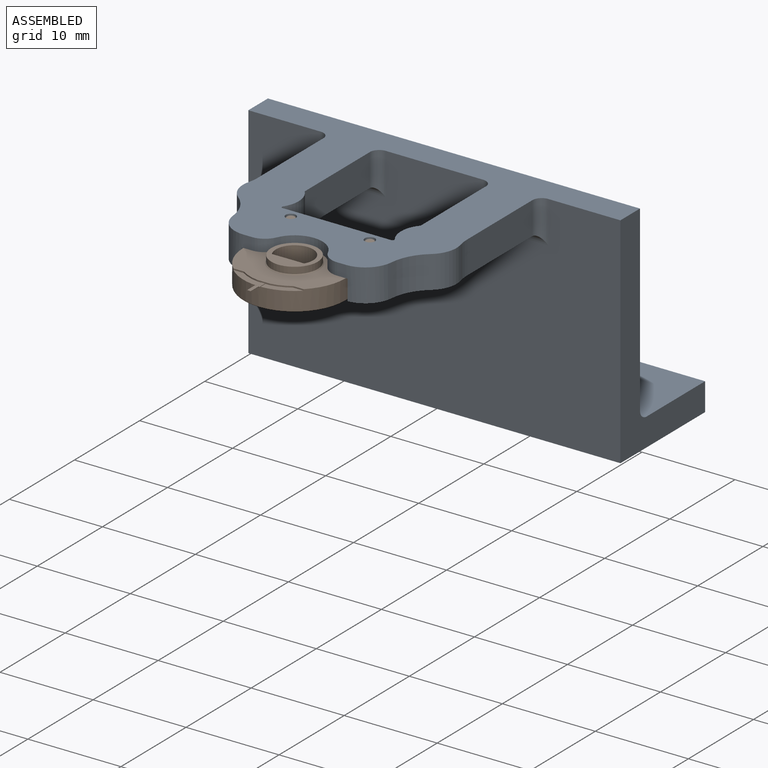
[diagram: assembled view]
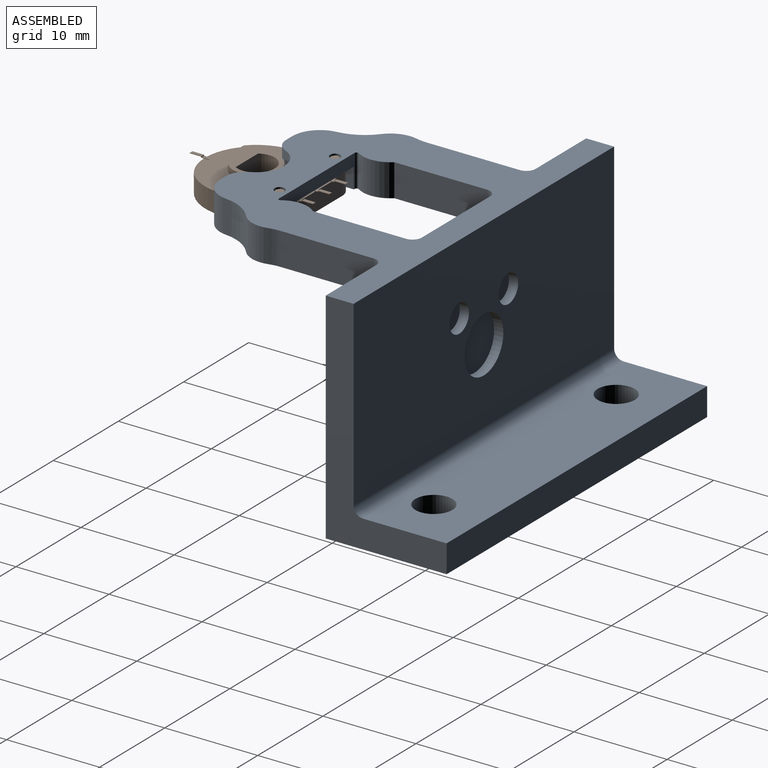
[diagram: assembled view, second angle]
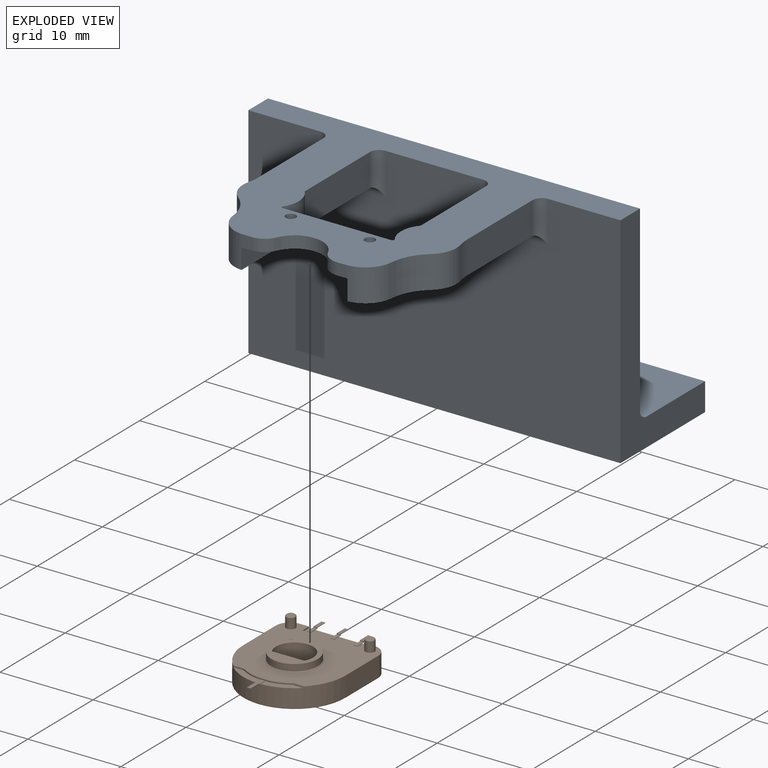
[diagram: exploded view]
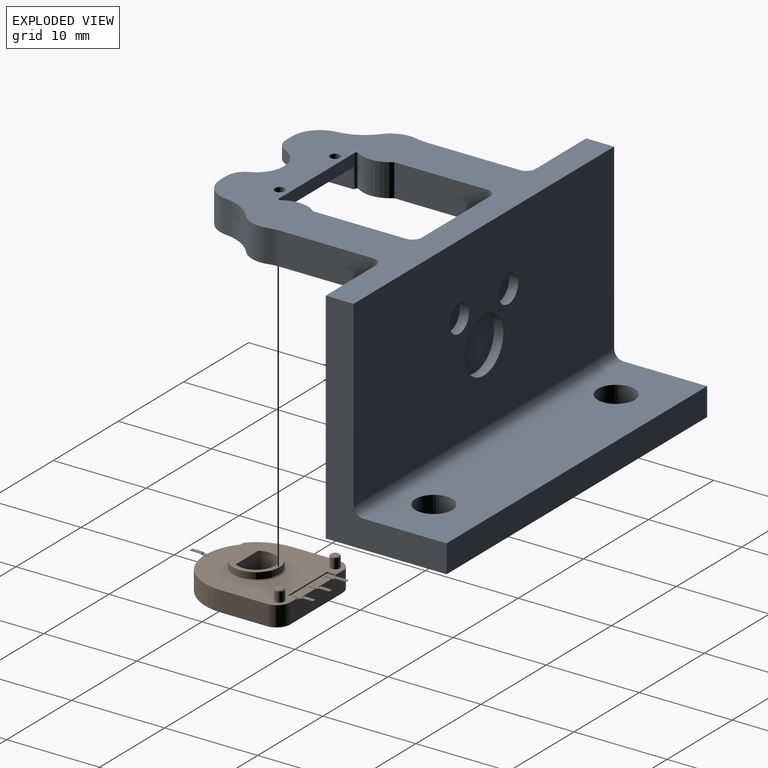
[diagram: exploded view, second angle]
ASSEMBLY  parts=2 mates=3
PART A: 52 faces, bbox 34.5x40x23.6 mm
  f0: plane 40x19.6mm, normal (1,0,0), area 741.6mm2, adj f1,f2,f30,f37,f46,f48,f50
  f1: plane 40x24.47mm, normal (0,0,1), area 370.9mm2, adj f0,f2,f4,f5,f6,f11,f12,f13
  f2: plane 23.6x13mm, normal (0,-1,0), area 101mm2, adj f0,f1,f27,f31,f35,f36,f37
  f3: plane 20.47x6mm, normal (0,0,-1), area 91.4mm2, adj f4,f8,f15,f17,f18,f20,f22,f28
  f4: cylinder r=3mm len=3.66mm, axis (0,0,1), area 13.8mm2, adj f1,f3,f18,f28
  f5: cylinder r=3mm len=3.5mm, axis (0,0,1), area 12mm2, adj f1,f10,f21,f34
  f6: plane 1.3x0.94mm, normal (-1,0,0), area 1.2mm2, adj f1,f7,f23,f25
  f7: plane 11.4x6.5mm, normal (0,0,-1), area 57.2mm2, adj f6,f8,f9,f11,f12,f13,f14,f17
  f8: plane 6.49x2.2mm, normal (0,-1,0), area 14.3mm2, adj f3,f7,f17,f22
  f9: plane 6.49x2.2mm, normal (0,1,0), area 14.3mm2, adj f7,f10,f17,f23
  f10: plane 20.47x6mm, normal (0,0,-1), area 91.4mm2, adj f5,f9,f16,f17,f19,f21,f23,f26
  f11: cylinder r=0.55mm len=1.3mm, axis (0,0,1), area 4.5mm2, adj f1,f7
  f12: cylinder r=0.55mm len=1.3mm, axis (0,0,1), area 4.5mm2, adj f1,f7
  f13: cylinder r=3mm len=5.5mm, axis (0,0,1), area 9mm2, adj f1,f7,f24,f25
  f14: plane 1.3x0.94mm, normal (-1,0,0), area 1.2mm2, adj f1,f7,f22,f24
  f15: cylinder r=3mm len=3.5mm, axis (0,0,1), area 12mm2, adj f1,f3,f20,f33
  f16: cylinder r=3mm len=3.66mm, axis (0,0,1), area 13.8mm2, adj f1,f10,f19,f26
  f17: plane 11.66x3.5mm, normal (1,0,0), area 15.7mm2, adj f1,f3,f7,f8,f9,f10,f18,f19
  f18: cylinder r=0.2mm len=3.5mm, axis (0,0,1), area 1.5mm2, adj f1,f3,f4,f17
  f19: cylinder r=0.2mm len=3.5mm, axis (0,0,1), area 1.5mm2, adj f1,f10,f16,f17
  f20: cylinder r=5mm len=3.5mm, axis (0,0,1), area 14mm2, adj f1,f3,f15,f22
  f21: cylinder r=5mm len=3.5mm, axis (0,0,1), area 14mm2, adj f1,f5,f10,f23
  f22: cylinder r=3mm len=3.5mm, axis (0,0,1), area 15.1mm2, adj f1,f3,f7,f8,f14,f20
  f23: cylinder r=3mm len=3.5mm, axis (0,0,1), area 15.1mm2, adj f1,f6,f7,f9,f10,f21
  f24: cylinder r=2mm len=1.83mm, axis (0,0,1), area 3mm2, adj f1,f7,f13,f14
  f25: cylinder r=2mm len=1.83mm, axis (0,0,1), area 3mm2, adj f1,f6,f7,f13
  f26: plane 10x3.5mm, normal (0,1,0), area 35mm2, adj f1,f10,f16,f41
  f27: plane 40x23.6mm, normal (-1,0,0), area 881mm2, adj f1,f2,f30,f35,f38,f39,f40,f41
  f28: plane 10x3.5mm, normal (0,-1,0), area 35mm2, adj f1,f3,f4,f39
  f29: plane 10x3.5mm, normal (0,1,0), area 35mm2, adj f1,f3,f33,f38
  f30: plane 23.6x13mm, normal (0,1,0), area 101mm2, adj f0,f1,f27,f31,f35,f36,f37
  f31: plane 40x3mm, normal (1,0,0), area 120mm2, adj f2,f30,f35,f36
  f32: plane 10x3.5mm, normal (0,-1,0), area 35mm2, adj f1,f10,f34,f42
  f33: cylinder r=5mm len=3.5mm, axis (0,0,-1), area 4.4mm2, adj f1,f3,f15,f29
  f34: cylinder r=5mm len=3.5mm, axis (0,0,1), area 4.4mm2, adj f1,f5,f10,f32
  f35: plane 40x13mm, normal (0,0,-1), area 494.9mm2, adj f2,f27,f30,f31,f44,f45
  f36: plane 40x9mm, normal (0,0,1), area 334.9mm2, adj f2,f30,f31,f37,f44,f45
  f37: cylinder r=1mm len=40mm, axis (0,1,0), area 62.8mm2, adj f0,f2,f30,f36
  f38: cylinder r=1mm len=4.5mm, axis (0,0,-1), area 6.1mm2, adj f1,f27,f29,f40
  f39: cylinder r=1mm len=4.5mm, axis (0,0,1), area 6.1mm2, adj f1,f27,f28,f40
  f40: cylinder r=1mm len=7mm, axis (0,1,0), area 9mm2, adj f3,f27,f38,f39
  f41: cylinder r=1mm len=4.5mm, axis (0,0,-1), area 6.1mm2, adj f1,f26,f27,f43
  f42: cylinder r=1mm len=4.5mm, axis (0,0,1), area 6.1mm2, adj f1,f27,f32,f43
  f43: cylinder r=1mm len=7mm, axis (0,1,0), area 9mm2, adj f10,f27,f41,f42
  f44: cylinder r=2mm len=4mm, axis (0,0,1), area 37.7mm2, adj f35,f36
  f45: cylinder r=2mm len=4mm, axis (0,0,1), area 37.7mm2, adj f35,f36
  f46: cylinder r=3mm len=6mm, axis (1,0,0), area 18.8mm2, adj f0,f47
  f47: plane 6x6mm, normal (1,0,0), area 28.3mm2, adj f46
  f48: cylinder r=1.5mm len=3mm, axis (1,0,0), area 9.4mm2, adj f0,f49
  f49: plane 3x3mm, normal (1,0,0), area 7.1mm2, adj f48
  f50: cylinder r=1.5mm len=3mm, axis (1,0,0), area 9.4mm2, adj f0,f51
  f51: plane 3x3mm, normal (1,0,0), area 7.1mm2, adj f50
PART B: 143 faces, bbox 11.9x15x3.4 mm
  f0: plane 7.55x1.5mm, normal (0,0,-1), area 4.7mm2, adj f2,f28,f29,f30,f31,f32,f33,f34
  f1: plane 11.8x10.8mm, normal (0,0,1), area 91.4mm2, adj f9,f11,f12,f13,f14,f15,f16,f41
  f2: cylinder r=5.5mm len=11mm, axis (0,0,-1), area 35mm2, adj f0,f3,f4,f8,f15,f28,f34,f101
  f3: plane 11.25x11mm, normal (0,0,-1), area 84.3mm2, adj f2,f4,f5,f6,f7,f8,f21,f22
  f4: plane 5x2.1mm, normal (-1,0,0), area 10.5mm2, adj f2,f3,f5,f13
  f5: cylinder r=1.5mm len=2.1mm, axis (0,0,-1), area 4.9mm2, adj f3,f4,f6,f11
  f6: plane 8x2.1mm, normal (0,-1,0), area 15.9mm2, adj f3,f5,f7,f12,f35,f39,f40,f87
  f7: cylinder r=1.5mm len=2.1mm, axis (0,0,-1), area 4.9mm2, adj f3,f6,f8,f14
  f8: plane 5x2.1mm, normal (1,0,0), area 10.5mm2, adj f2,f3,f7,f16
  f9: cylinder r=2.25mm len=4.5mm, axis (0,0,1), area 1.4mm2, adj f1,f10
  f10: plane 4.5x4.5mm, normal (0,0,1), area 5.8mm2, adj f9,f19,f20
  f11: torus R=1.4mm, axis (0,0,1), area 0.4mm2, adj f1,f5,f12,f13
  f12: cylinder r=0.1mm len=8mm, axis (-1,0,0), area 1.3mm2, adj f1,f6,f11,f14
  f13: cylinder r=0.1mm len=5mm, axis (0,1,0), area 0.8mm2, adj f1,f4,f11,f15
  f14: torus R=1.4mm, axis (0,0,1), area 0.4mm2, adj f1,f7,f12,f16
  f15: torus R=5.4mm, axis (0,0,1), area 2.7mm2, adj f1,f2,f13,f16
  f16: cylinder r=0.1mm len=5mm, axis (0,-1,0), area 0.8mm2, adj f1,f8,f14,f15
  f17: cylinder r=2.5mm len=5mm, axis (0,0,1), area 11mm2, adj f18,f21
  f18: plane 5x5mm, normal (0,0,-1), area 9.5mm2, adj f17,f19,f20
  f19: cylinder r=2mm len=4mm, axis (0,0,1), area 24.3mm2, adj f10,f18,f20
  f20: plane 3.46x2.9mm, normal (0,-1,0), area 10mm2, adj f10,f18,f19
  f21: cone r=2.5mm half-angle=45deg, axis (0,0,1), area 2.3mm2, adj f3,f17
  f22: cylinder r=0.5mm len=1.1mm, axis (0,0,1), area 3.5mm2, adj f3,f27
  f23: plane 0.8x0.8mm, normal (0,0,-1), area 0.5mm2, adj f27
  f24: cylinder r=0.5mm len=1.1mm, axis (0,0,1), area 3.5mm2, adj f3,f26
  f25: plane 0.8x0.8mm, normal (0,0,-1), area 0.5mm2, adj f26
  f26: cone r=0.5mm half-angle=45deg, axis (0,0,1), area 0.4mm2, adj f24,f25
  f27: cone r=0.4mm half-angle=45deg, axis (0,0,1), area 0.4mm2, adj f22,f23
  f28: plane 1.09x0.15mm, normal (0,1,0), area 0.2mm2, adj f0,f2,f3,f29
  f29: cylinder r=0.1mm len=0.15mm, axis (0,0,-1), area 0mm2, adj f0,f3,f28,f30
  f30: cylinder r=4.8mm len=1.94mm, axis (0,0,-1), area 0.3mm2, adj f0,f3,f29,f31
  f31: plane 1.38x0.15mm, normal (0,1,0), area 0.2mm2, adj f0,f3,f30,f32
  f32: cylinder r=4.8mm len=1.94mm, axis (0,0,-1), area 0.3mm2, adj f0,f3,f31,f33
  f33: cylinder r=0.1mm len=0.15mm, axis (0,0,-1), area 0mm2, adj f0,f3,f32,f34
  f34: plane 1.09x0.15mm, normal (0,1,0), area 0.2mm2, adj f0,f2,f3,f33
  f35: plane 0.9x0.15mm, normal (1,0,0), area 0.1mm2, adj f3,f6,f36,f40
  f36: cylinder r=0.1mm len=0.15mm, axis (0,0,-1), area 0mm2, adj f3,f35,f37,f40
  f37: plane 5.8x0.15mm, normal (0,-1,0), area 0.9mm2, adj f3,f36,f38,f40
  f38: cylinder r=0.1mm len=0.15mm, axis (0,0,-1), area 0mm2, adj f3,f37,f39,f40
  f39: plane 0.9x0.15mm, normal (-1,0,0), area 0.1mm2, adj f3,f6,f38,f40
  f40: plane 6x1mm, normal (0,0,-1), area 5.2mm2, adj f6,f35,f36,f37,f38,f39,f88,f99
  f41: cylinder r=0.1mm len=0.2mm, axis (0,0,1), area 0mm2, adj f1,f42,f48,f49
  f42: plane 1.3x0.2mm, normal (0,1,0), area 0.3mm2, adj f1,f41,f43,f49
  f43: cylinder r=0.1mm len=0.2mm, axis (0,0,1), area 0mm2, adj f1,f42,f44,f49
  f44: plane 0.4x0.2mm, normal (-1,0,0), area 0.1mm2, adj f1,f43,f45,f49
  f45: cylinder r=0.1mm len=0.2mm, axis (0,0,1), area 0mm2, adj f1,f44,f46,f49
  f46: plane 1.3x0.2mm, normal (0,-1,0), area 0.3mm2, adj f1,f45,f47,f49
  f47: cylinder r=0.1mm len=0.2mm, axis (0,0,1), area 0mm2, adj f1,f46,f48,f49
  f48: plane 0.4x0.2mm, normal (1,0,0), area 0.1mm2, adj f1,f41,f47,f49
  f49: plane 1.5x0.6mm, normal (0,0,1), area 0.9mm2, adj f41,f42,f43,f44,f45,f46,f47,f48
  f50: cylinder r=0.3mm len=0.6mm, axis (0,0,1), area 0.2mm2, adj f1,f51,f53,f54
  f51: cylinder r=4.7mm len=1.53mm, axis (0,0,1), area 0.3mm2, adj f1,f50,f52,f54
  f52: cylinder r=0.3mm len=0.56mm, axis (0,0,1), area 0.2mm2, adj f1,f51,f53,f54
  f53: cylinder r=5.3mm len=1.73mm, axis (0,0,1), area 0.4mm2, adj f1,f50,f52,f54
  f54: plane 2.23x1.19mm, normal (0,0,1), area 1.3mm2, adj f50,f51,f52,f53
  f55: cylinder r=0.1mm len=0.2mm, axis (0,0,1), area 0mm2, adj f1,f56,f62,f63
  f56: plane 0.4x0.2mm, normal (0,1,0), area 0.1mm2, adj f1,f55,f57,f63
  f57: cylinder r=0.1mm len=0.2mm, axis (0,0,1), area 0mm2, adj f1,f56,f58,f63
  f58: plane 1.8x0.2mm, normal (-1,0,0), area 0.4mm2, adj f1,f57,f59,f63
  f59: cylinder r=0.1mm len=0.2mm, axis (0,0,1), area 0mm2, adj f1,f58,f60,f63
  f60: plane 0.4x0.2mm, normal (0,-1,0), area 0.1mm2, adj f1,f59,f61,f63
  f61: cylinder r=0.1mm len=0.2mm, axis (0,0,1), area 0mm2, adj f1,f60,f62,f63
  f62: plane 1.8x0.2mm, normal (1,0,0), area 0.4mm2, adj f1,f55,f61,f63
  f63: plane 2x0.6mm, normal (0,0,1), area 1.2mm2, adj f55,f56,f57,f58,f59,f60,f61,f62
  f64: cylinder r=0.1mm len=0.2mm, axis (0,0,1), area 0mm2, adj f1,f65,f71,f72
  f65: plane 1.3x0.2mm, normal (0,-1,0), area 0.3mm2, adj f1,f64,f66,f72
  f66: cylinder r=0.1mm len=0.2mm, axis (0,0,1), area 0mm2, adj f1,f65,f67,f72
  f67: plane 0.4x0.2mm, normal (1,0,0), area 0.1mm2, adj f1,f66,f68,f72
  f68: cylinder r=0.1mm len=0.2mm, axis (0,0,1), area 0mm2, adj f1,f67,f69,f72
  f69: plane 1.3x0.2mm, normal (0,1,0), area 0.3mm2, adj f1,f68,f70,f72
  f70: cylinder r=0.1mm len=0.2mm, axis (0,0,1), area 0mm2, adj f1,f69,f71,f72
  f71: plane 0.4x0.2mm, normal (-1,0,0), area 0.1mm2, adj f1,f64,f70,f72
  f72: plane 1.5x0.6mm, normal (0,0,1), area 0.9mm2, adj f64,f65,f66,f67,f68,f69,f70,f71
  f73: cylinder r=0.1mm len=0.2mm, axis (0,0,1), area 0mm2, adj f1,f74,f80,f81
  f74: plane 1.8x0.2mm, normal (1,0,0), area 0.4mm2, adj f1,f73,f75,f81
  f75: cylinder r=0.1mm len=0.2mm, axis (0,0,1), area 0mm2, adj f1,f74,f76,f81
  f76: plane 0.4x0.2mm, normal (0,1,0), area 0.1mm2, adj f1,f75,f77,f81
  f77: cylinder r=0.1mm len=0.2mm, axis (0,0,1), area 0mm2, adj f1,f76,f78,f81
  f78: plane 1.8x0.2mm, normal (-1,0,0), area 0.4mm2, adj f1,f77,f79,f81
  f79: cylinder r=0.1mm len=0.2mm, axis (0,0,1), area 0mm2, adj f1,f78,f80,f81
  f80: plane 0.4x0.2mm, normal (0,-1,0), area 0.1mm2, adj f1,f73,f79,f81
  f81: plane 2x0.6mm, normal (0,0,1), area 1.2mm2, adj f73,f74,f75,f76,f77,f78,f79,f80
  f82: cylinder r=0.3mm len=0.6mm, axis (0,0,1), area 0.2mm2, adj f1,f83,f85,f86
  f83: cylinder r=5.3mm len=1.73mm, axis (0,0,1), area 0.4mm2, adj f1,f82,f84,f86
  f84: cylinder r=0.3mm len=0.56mm, axis (0,0,1), area 0.2mm2, adj f1,f83,f85,f86
  f85: cylinder r=4.7mm len=1.53mm, axis (0,0,1), area 0.3mm2, adj f1,f82,f84,f86
  f86: plane 2.23x1.19mm, normal (0,0,1), area 1.3mm2, adj f82,f83,f84,f85
  f87: plane 0.4x0.28mm, normal (0,0,1), area 0.1mm2, adj f6,f89,f99,f100
  f88: plane 0.4x0.05mm, normal (0,1,0), area 0mm2, adj f40,f98,f99,f100
  f89: cylinder r=0.02mm len=0.4mm, axis (-1,0,0), area 0mm2, adj f87,f90,f99,f100
  f90: plane 0.4x0.06mm, normal (0,-1,0), area 0mm2, adj f89,f91,f99,f100
  f91: cylinder r=0.02mm len=0.4mm, axis (-1,0,0), area 0mm2, adj f90,f92,f99,f100
  f92: plane 1.18x0.4mm, normal (0,0,1), area 0.5mm2, adj f91,f93,f99,f100
  f93: plane 0.4x0.05mm, normal (0,-1,0), area 0mm2, adj f92,f94,f99,f100
  f94: plane 1.23x0.4mm, normal (0,0,-1), area 0.5mm2, adj f93,f95,f99,f100
  f95: cylinder r=0.02mm len=0.4mm, axis (-1,0,0), area 0mm2, adj f94,f96,f99,f100
  f96: plane 0.4x0.06mm, normal (0,1,0), area 0mm2, adj f95,f97,f99,f100
  f97: cylinder r=0.02mm len=0.4mm, axis (-1,0,0), area 0mm2, adj f96,f98,f99,f100
  f98: plane 0.93x0.4mm, normal (0,0,-1), area 0.4mm2, adj f88,f97,f99,f100
  f99: plane 2.2x0.15mm, normal (1,0,0), area 0.1mm2, adj f40,f87,f88,f89,f90,f91,f92,f93
  f100: plane 2.2x0.15mm, normal (-1,0,0), area 0.1mm2, adj f40,f87,f88,f89,f90,f91,f92,f93
  f101: plane 0.4x0.28mm, normal (0,0,1), area 0.1mm2, adj f2,f107,f113,f114
  f102: plane 1.23x0.4mm, normal (0,0,-1), area 0.5mm2, adj f103,f112,f113,f114
  f103: plane 0.4x0.05mm, normal (0,1,0), area 0mm2, adj f102,f104,f113,f114
  f104: plane 1.18x0.4mm, normal (0,0,1), area 0.5mm2, adj f103,f105,f113,f114
  f105: cylinder r=0.02mm len=0.4mm, axis (-1,0,0), area 0mm2, adj f104,f106,f113,f114
  f106: plane 0.4x0.06mm, normal (0,1,0), area 0mm2, adj f105,f107,f113,f114
  f107: cylinder r=0.02mm len=0.4mm, axis (-1,0,0), area 0mm2, adj f101,f106,f113,f114
  f108: plane 0.4x0.05mm, normal (0,-1,0), area 0mm2, adj f0,f109,f113,f114
  f109: plane 0.93x0.4mm, normal (0,0,-1), area 0.4mm2, adj f108,f110,f113,f114
  f110: cylinder r=0.02mm len=0.4mm, axis (-1,0,0), area 0mm2, adj f109,f111,f113,f114
  f111: plane 0.4x0.06mm, normal (0,-1,0), area 0mm2, adj f110,f112,f113,f114
  f112: cylinder r=0.02mm len=0.4mm, axis (-1,0,0), area 0mm2, adj f102,f111,f113,f114
  f113: plane 2.2x0.15mm, normal (1,0,0), area 0.1mm2, adj f0,f101,f102,f103,f104,f105,f106,f107
  f114: plane 2.2x0.15mm, normal (-1,0,0), area 0.1mm2, adj f0,f101,f102,f103,f104,f105,f106,f107
  f115: plane 0.4x0.28mm, normal (0,0,1), area 0.1mm2, adj f6,f117,f127,f128
  f116: plane 0.4x0.05mm, normal (0,1,0), area 0mm2, adj f40,f126,f127,f128
  f117: cylinder r=0.02mm len=0.4mm, axis (-1,0,0), area 0mm2, adj f115,f118,f127,f128
  f118: plane 0.4x0.06mm, normal (0,-1,0), area 0mm2, adj f117,f119,f127,f128
  f119: cylinder r=0.02mm len=0.4mm, axis (-1,0,0), area 0mm2, adj f118,f120,f127,f128
  f120: plane 1.18x0.4mm, normal (0,0,1), area 0.5mm2, adj f119,f121,f127,f128
  f121: plane 0.4x0.05mm, normal (0,-1,0), area 0mm2, adj f120,f122,f127,f128
  f122: plane 1.23x0.4mm, normal (0,0,-1), area 0.5mm2, adj f121,f123,f127,f128
  f123: cylinder r=0.02mm len=0.4mm, axis (-1,0,0), area 0mm2, adj f122,f124,f127,f128
  f124: plane 0.4x0.06mm, normal (0,1,0), area 0mm2, adj f123,f125,f127,f128
  f125: cylinder r=0.02mm len=0.4mm, axis (-1,0,0), area 0mm2, adj f124,f126,f127,f128
  f126: plane 0.93x0.4mm, normal (0,0,-1), area 0.4mm2, adj f116,f125,f127,f128
  f127: plane 2.2x0.15mm, normal (1,0,0), area 0.1mm2, adj f40,f115,f116,f117,f118,f119,f120,f121
  f128: plane 2.2x0.15mm, normal (-1,0,0), area 0.1mm2, adj f40,f115,f116,f117,f118,f119,f120,f121
  f129: plane 0.4x0.28mm, normal (0,0,1), area 0.1mm2, adj f6,f131,f141,f142
  f130: plane 0.4x0.05mm, normal (0,1,0), area 0mm2, adj f40,f140,f141,f142
  f131: cylinder r=0.02mm len=0.4mm, axis (-1,0,0), area 0mm2, adj f129,f132,f141,f142
  f132: plane 0.4x0.06mm, normal (0,-1,0), area 0mm2, adj f131,f133,f141,f142
  f133: cylinder r=0.02mm len=0.4mm, axis (-1,0,0), area 0mm2, adj f132,f134,f141,f142
  f134: plane 1.18x0.4mm, normal (0,0,1), area 0.5mm2, adj f133,f135,f141,f142
  f135: plane 0.4x0.05mm, normal (0,-1,0), area 0mm2, adj f134,f136,f141,f142
  f136: plane 1.23x0.4mm, normal (0,0,-1), area 0.5mm2, adj f135,f137,f141,f142
  f137: cylinder r=0.02mm len=0.4mm, axis (-1,0,0), area 0mm2, adj f136,f138,f141,f142
  f138: plane 0.4x0.06mm, normal (0,1,0), area 0mm2, adj f137,f139,f141,f142
  f139: cylinder r=0.02mm len=0.4mm, axis (-1,0,0), area 0mm2, adj f138,f140,f141,f142
  f140: plane 0.93x0.4mm, normal (0,0,-1), area 0.4mm2, adj f130,f139,f141,f142
  f141: plane 2.2x0.15mm, normal (1,0,0), area 0.1mm2, adj f40,f129,f130,f131,f132,f133,f134,f135
  f142: plane 2.2x0.15mm, normal (-1,0,0), area 0.1mm2, adj f40,f129,f130,f131,f132,f133,f134,f135
PLACE A rot(axis=(0,0,1),90deg) t=(-16.32,-12.59,-2.35)mm fixed
PLACE B rot(axis=(1,0,0),180deg) t=(-16.32,-18.59,-0.15)mm
MATE planar A.f7 <-> B.f3  axis (0,0,-1) through (-16.32,-14.88,-0.15)mm
MATE cylindrical B.f22 <-> A.f11  axis (0,0,1) through (-12.07,-13.09,-0.15)mm
MATE cylindrical A.f12 <-> B.f24  axis (0,0,-1) through (-20.57,-13.09,-0.15)mm
